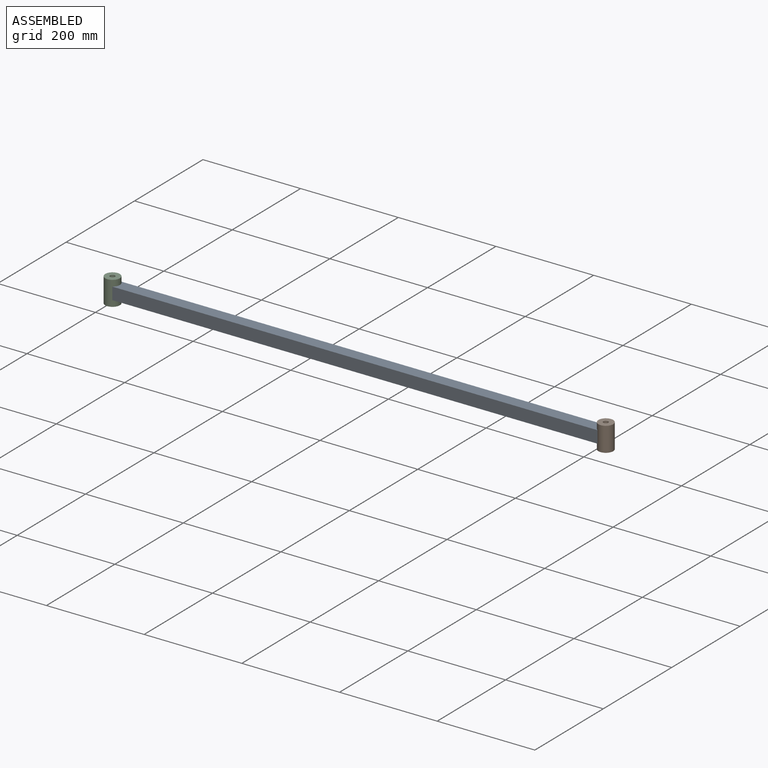
[diagram: assembled view]
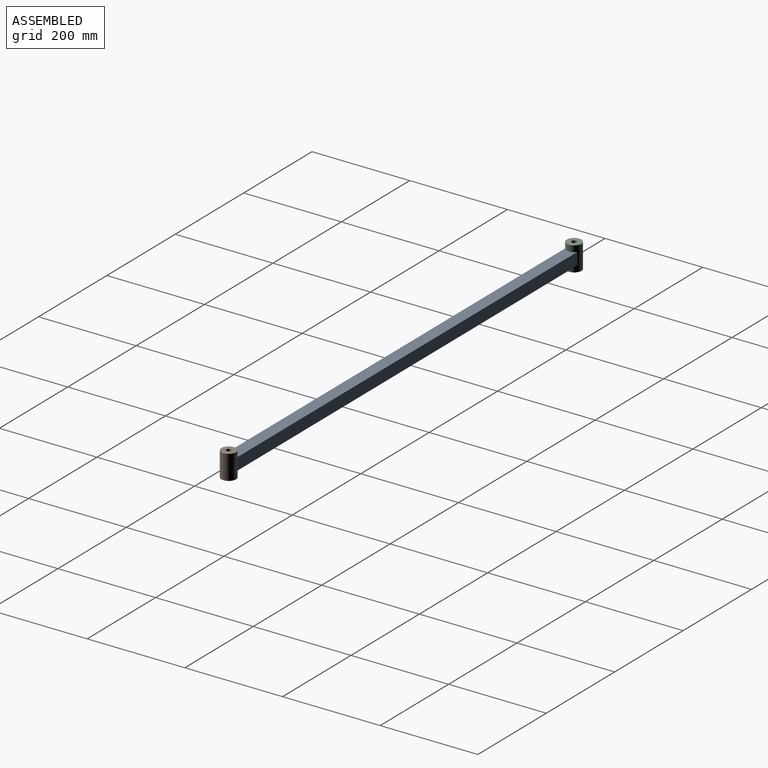
[diagram: assembled view, second angle]
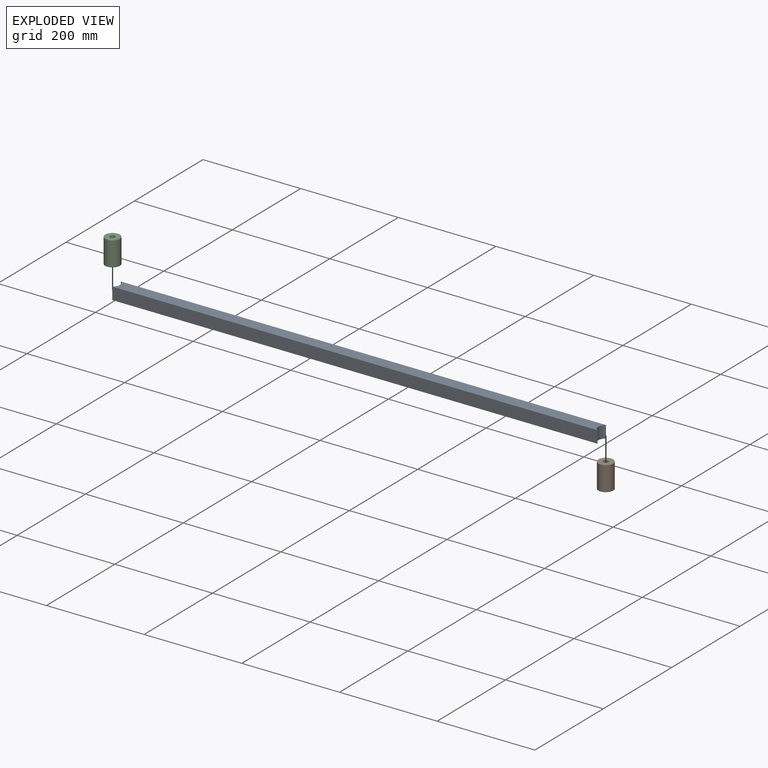
[diagram: exploded view]
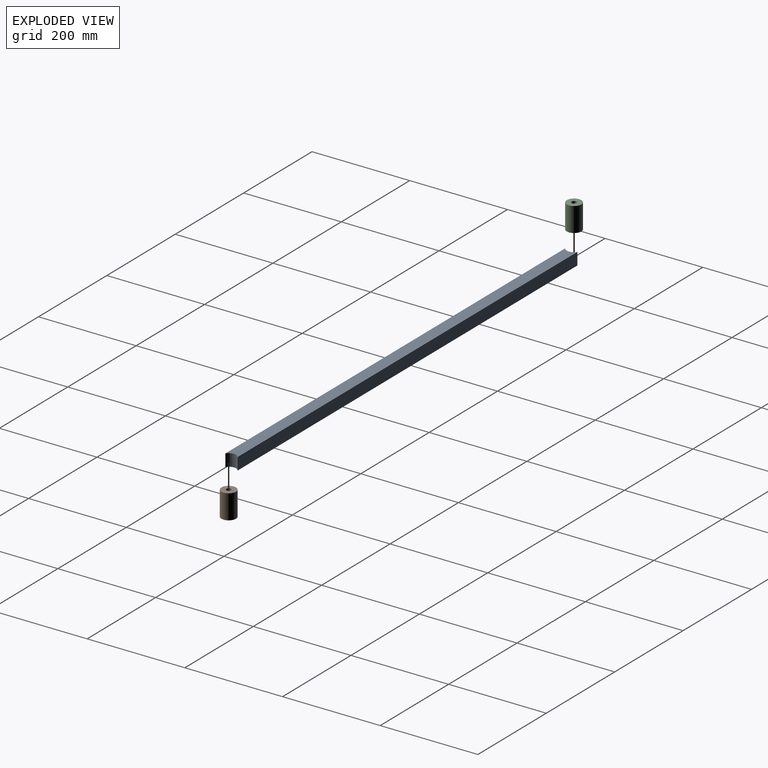
[diagram: exploded view, second angle]
ASSEMBLY  parts=3 mates=2
PART A: 6 faces, bbox 993.4x25x25 mm
  f0: plane 993.42x25mm, normal (0,1,0), area 24835.4mm2, adj f2,f3,f4,f5
  f1: plane 993.42x25mm, normal (0,-1,0), area 24835.4mm2, adj f2,f3,f4,f5
  f2: plane 993.42x25mm, normal (0,0,1), area 24599.4mm2, adj f0,f1,f4,f5
  f3: plane 993.42x25mm, normal (0,0,-1), area 24599.4mm2, adj f0,f1,f4,f5
  f4: cylinder r=15mm len=25mm, axis (0,0,1), area 738.8mm2, adj f0,f1,f2,f3
  f5: cylinder r=15mm len=25mm, axis (0,0,1), area 738.8mm2, adj f0,f1,f2,f3
PART B: 4 faces, bbox 30x30x50 mm
  f0: cylinder r=5mm len=50mm, axis (0,0,-1), area 1570.8mm2, adj f2,f3
  f1: cylinder r=15mm len=50mm, axis (0,0,-1), area 4712.4mm2, adj f2,f3
  f2: plane 30x30mm, normal (0,0,1), area 628.3mm2, adj f0,f1
  f3: plane 30x30mm, normal (0,0,-1), area 628.3mm2, adj f0,f1
PART C: same geometry as B
PLACE A t=(480.45,-0.46,8.06)mm
PLACE B t=(985.45,-0.46,-4.44)mm
PLACE C t=(-24.55,-0.46,-4.44)mm fixed
MATE fastened B.f1 <-> A.f4  axis (0,0,-1) through (985.45,-0.46,20.56)mm
MATE fastened A.f5 <-> C.f1  axis (0,0,1) through (-24.55,-0.46,20.56)mm
